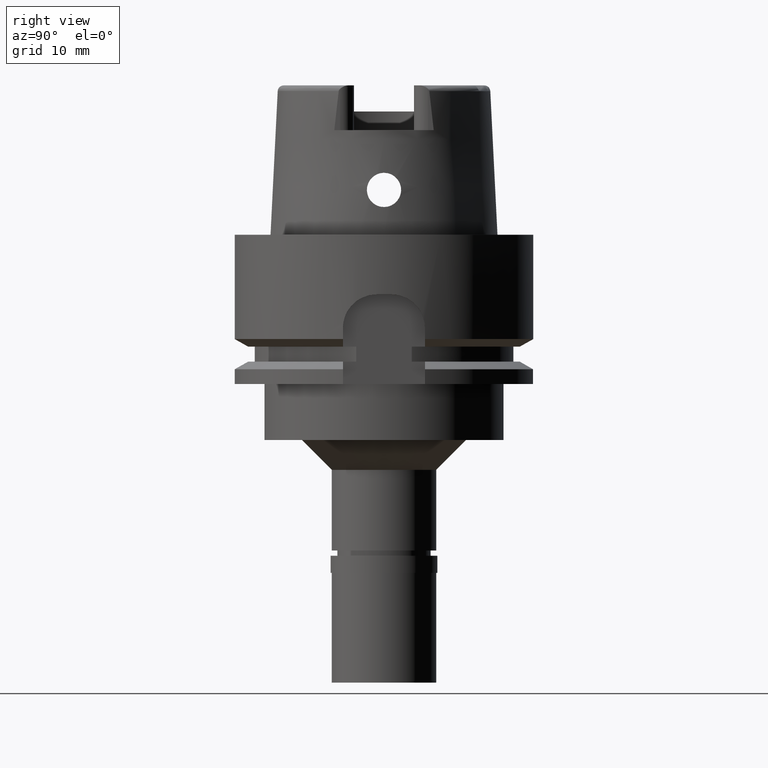
[diagram: clean part render]
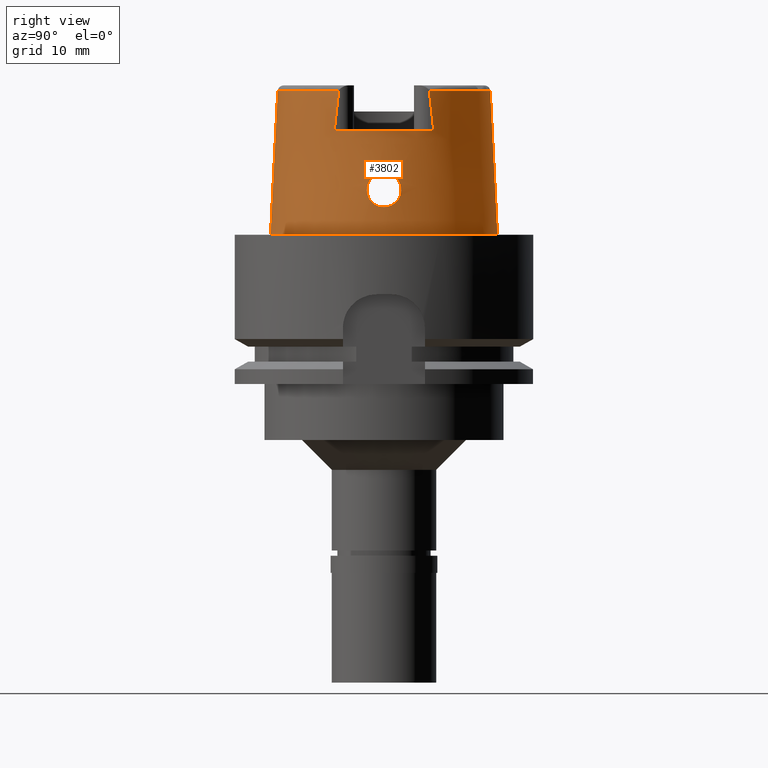
[diagram: same view with one face highlighted and labeled with its STEP entity id]
A machine part, right view. The second image highlights one B-rep face of the part: STEP entity #3802.
In plain terms, the highlighted conical surface has half-angle 2.862 deg.
Its self-contained STEP definition (entity closure, byte-faithful):
#5 = CARTESIAN_POINT ( 'NONE',  ( 14.74746210141042901, 1.308969163063071761, 7.891227968485833522 ) ) ;
#11 = CARTESIAN_POINT ( 'NONE',  ( 14.92935567533019103, -1.380120542205658163, 4.153850966123725286 ) ) ;
#31 = CARTESIAN_POINT ( 'NONE',  ( 14.74847181687139752, 1.290108341005458348, 7.904111744468585776 ) ) ;
#35 = CARTESIAN_POINT ( 'NONE',  ( 14.87704271463027617, -1.720752544004548357, 4.473070447404713157 ) ) ;
#58 = CARTESIAN_POINT ( 'NONE',  ( 14.74382373128674928, 2.273238747565043738, 5.642081376087535460 ) ) ;
#87 = CARTESIAN_POINT ( 'NONE',  ( 14.83348634340086392, 1.949407324743515746, 4.777192682925997858 ) ) ;
#163 = EDGE_LOOP ( 'NONE', ( #2917, #4524 ) ) ;
#232 = CARTESIAN_POINT ( 'NONE',  ( 14.77731969520874955, -0.5813452205441042020, 8.226696748688809180 ) ) ;
#248 = CARTESIAN_POINT ( 'NONE',  ( 14.98148037233843155, 0.8665527453531454150, 3.869473469447908265 ) ) ;
#252 = CARTESIAN_POINT ( 'NONE',  ( 14.75063943624845919, -1.249098193476073204, 7.931310886500990698 ) ) ;
#280 = CARTESIAN_POINT ( 'NONE',  ( 14.78499286951999458, -0.1391435394969850470, 8.299999999999998934 ) ) ;
#307 = CARTESIAN_POINT ( 'NONE',  ( 14.71551364912842530, -1.855953234141038077, 7.366728212502884787 ) ) ;
#375 = CARTESIAN_POINT ( 'NONE',  ( 12.88000000001000167, -6.659963896840999986, 14.00000000000000000 ) ) ;
#385 = CARTESIAN_POINT ( 'NONE',  ( 14.70884916733791314, 2.286208832778403366, 6.292960380918006358 ) ) ;
#392 = CARTESIAN_POINT ( 'NONE',  ( 14.87055122855935529, -1.757709749341536343, 4.516124516433755787 ) ) ;
#413 = CARTESIAN_POINT ( 'NONE',  ( 14.74279783466153759, 1.394444610910544391, 7.829369356401133295 ) ) ;
#420 = CARTESIAN_POINT ( 'NONE',  ( 14.88789433745228585, -1.656179258491061290, 4.404017656865332420 ) ) ;
#442 = CARTESIAN_POINT ( 'NONE',  ( 14.71335089346777991, 1.896739896092925148, 7.303073132993861627 ) ) ;
#446 = CARTESIAN_POINT ( 'NONE',  ( 15.01500049748000620, -0.2875016380362344637, 3.699999999999998401 ) ) ;
#466 = CARTESIAN_POINT ( 'NONE',  ( 14.79666035521596257, 2.107820976572813976, 5.079423170689487677 ) ) ;
#472 = CARTESIAN_POINT ( 'NONE',  ( 14.97982209528140984, -0.8874059857386379369, 3.878065389903710525 ) ) ;
#497 = CARTESIAN_POINT ( 'NONE',  ( 14.71589562828282816, 1.851379962035808235, 7.367145579385099730 ) ) ;
#515 = DIRECTION ( 'NONE',  ( 0.8882768779220027167, 0.4593083802296007434, 0.0000000000000000000 ) ) ;
#523 = CARTESIAN_POINT ( 'NONE',  ( 12.88000000000000078, 6.263607520265212614, 17.57637995667134234 ) ) ;
#567 = CARTESIAN_POINT ( 'NONE',  ( 0.0000000000000000000, 14.23797715755999782, 19.23995141520000018 ) ) ;
#605 = EDGE_CURVE ( 'NONE', #5190, #4963, #2624, .T. ) ;
#612 = CIRCLE ( 'NONE', #958, 15.20000663301000010 ) ;
#635 = CARTESIAN_POINT ( 'NONE',  ( 14.76682765940899600, 0.8979610686173700174, 8.117470553073822259 ) ) ;
#646 = CARTESIAN_POINT ( 'NONE',  ( 14.71946415447971823, -2.299931617983177912, 6.038619287508075750 ) ) ;
#671 = CARTESIAN_POINT ( 'NONE',  ( 14.70331607478621194, -2.122035784307452211, 6.887162184341285354 ) ) ;
#695 = CARTESIAN_POINT ( 'NONE',  ( 14.76759460662934487, -0.8783932425125173804, 8.125662381886558094 ) ) ;
#718 = CARTESIAN_POINT ( 'NONE',  ( 14.78353131250833385, -0.2842489648354560861, 8.287348380467392417 ) ) ;
#747 = CARTESIAN_POINT ( 'NONE',  ( 14.75363996601564942, -1.190469742509851381, 7.968045714304610172 ) ) ;
#797 = CARTESIAN_POINT ( 'NONE',  ( 14.80064849366628721, 2.092108367808843461, 5.044252363179491105 ) ) ;
#820 = CARTESIAN_POINT ( 'NONE',  ( 12.88000000000000078, -6.460694174507035648, 15.83011803578793320 ) ) ;
#822 = CARTESIAN_POINT ( 'NONE',  ( 14.73773384448932866, 1.484087310098157086, 7.758020320716957130 ) ) ;
#828 = CARTESIAN_POINT ( 'NONE',  ( 14.82848291697530740, -1.972819218081519166, 4.817461836419033361 ) ) ;
#846 = CARTESIAN_POINT ( 'NONE',  ( 14.89626188648040639, 1.604318472935386986, 4.351884099019180496 ) ) ;
#877 = CARTESIAN_POINT ( 'NONE',  ( 14.80666145108240173, 2.067947584731435029, 4.991950655166025541 ) ) ;
#881 = CARTESIAN_POINT ( 'NONE',  ( 14.72809888189786243, -2.300253304590983650, 5.867089944022708892 ) ) ;
#897 = ORIENTED_EDGE ( 'NONE', *, *, #3092, .T. ) ;
#902 = CARTESIAN_POINT ( 'NONE',  ( 0.0000000000000000000, -14.23797715755999782, 19.23995141520000018 ) ) ;
#903 = CARTESIAN_POINT ( 'NONE',  ( 14.79479697821969353, 2.115025011223758522, 5.096068661740194017 ) ) ;
#947 = CARTESIAN_POINT ( 'NONE',  ( 12.88000000001000167, 6.659963896840999986, 14.00000000000000000 ) ) ;
#958 = AXIS2_PLACEMENT_3D ( 'NONE', #1071, #2242, #3896 ) ;
#1013 = CARTESIAN_POINT ( 'NONE',  ( 14.75280675805564812, 1.208712125945002880, 7.958799577560222716 ) ) ;
#1029 = ORIENTED_EDGE ( 'NONE', *, *, #5227, .F. ) ;
#1039 = CARTESIAN_POINT ( 'NONE',  ( 14.75631187839886493, 1.137667573944719956, 8.000356808905554118 ) ) ;
#1042 = VECTOR ( 'NONE', #3123, 1000.000000000000227 ) ;
#1050 = CARTESIAN_POINT ( 'NONE',  ( 14.70725173791872820, -2.271298306155478564, 6.369850645024469848 ) ) ;
#1067 = CARTESIAN_POINT ( 'NONE',  ( 14.98574308883158501, 0.8103790584047582124, 3.847340703320679012 ) ) ;
#1070 = CARTESIAN_POINT ( 'NONE',  ( 14.76871306554044949, -0.8491380674405223372, 8.137555551890359951 ) ) ;
#1071 = CARTESIAN_POINT ( 'NONE',  ( 0.0000000000000000000, 0.0000000000000000000, 7.958078640512999903E-13 ) ) ;
#1096 = CARTESIAN_POINT ( 'NONE',  ( 14.72916566287387319, -1.626401404973857767, 7.626291570307441425 ) ) ;
#1126 = CARTESIAN_POINT ( 'NONE',  ( 14.72980086668919952, -1.616212006316881000, 7.636443999579308972 ) ) ;
#1147 = CARTESIAN_POINT ( 'NONE',  ( 14.73231270229910983, -1.575468545320364733, 7.676103092676109796 ) ) ;
#1158 = EDGE_CURVE ( 'NONE', #3344, #2226, #3547, .T. ) ;
#1169 = AXIS2_PLACEMENT_3D ( 'NONE', #1537, #4878, #1971 ) ;
#1186 = VECTOR ( 'NONE', #4535, 1000.000000000000227 ) ;
#1197 = CARTESIAN_POINT ( 'NONE',  ( 14.70427063110080290, 2.079083494800741505, 6.991180673162743275 ) ) ;
#1225 = CARTESIAN_POINT ( 'NONE',  ( 14.93067013557703859, 1.362086856567604087, 4.144863184134784717 ) ) ;
#1230 = CARTESIAN_POINT ( 'NONE',  ( 14.83552922572987498, -1.939729989851151304, 4.764054186815303460 ) ) ;
#1251 = CARTESIAN_POINT ( 'NONE',  ( 14.72329670887186381, 2.299987056494400051, 5.962758927933275999 ) ) ;
#1280 = CARTESIAN_POINT ( 'NONE',  ( 14.90604151170108338, 1.540045616203341350, 4.291572566468078165 ) ) ;
#1287 = CARTESIAN_POINT ( 'NONE',  ( 14.83194585459848547, -1.956767935974938144, 4.790935393891938787 ) ) ;
#1299 = EDGE_LOOP ( 'NONE', ( #1029, #2529, #5082, #1840, #1446, #897, #3388, #4826 ) ) ;
#1309 = CARTESIAN_POINT ( 'NONE',  ( 14.96044792710318028, 1.107249988679927188, 3.978468477640336953 ) ) ;
#1320 = FACE_BOUND ( 'NONE', #163, .T. ) ;
#1434 = CARTESIAN_POINT ( 'NONE',  ( 0.0000000000000000000, -14.23797715755999782, 19.23995141520000018 ) ) ;
#1446 = ORIENTED_EDGE ( 'NONE', *, *, #3963, .F. ) ;
#1485 = CIRCLE ( 'NONE', #2172, 14.23797715755999782 ) ;
#1533 = CARTESIAN_POINT ( 'NONE',  ( 14.75228683030229071, -1.217300503494462838, 7.951661517696787307 ) ) ;
#1537 = CARTESIAN_POINT ( 'NONE',  ( 0.0000000000000000000, 0.0000000000000000000, 19.23995141520000018 ) ) ;
#1561 = CARTESIAN_POINT ( 'NONE',  ( 14.70734863064786957, -2.012830444106611161, 7.114970398975867028 ) ) ;
#1585 = CARTESIAN_POINT ( 'NONE',  ( 14.70337098597962644, -2.119802765027153146, 6.892466584778242478 ) ) ;
#1609 = CARTESIAN_POINT ( 'NONE',  ( 14.99370625009374969, 0.6922392700127031340, 3.806314018960327950 ) ) ;
#1635 = CARTESIAN_POINT ( 'NONE',  ( 14.78499286951999991, -6.894269632583999541E-14, 8.300000000000000711 ) ) ;
#1636 = CARTESIAN_POINT ( 'NONE',  ( 14.70331966261005263, 2.224938590171117170, 6.587761534165142763 ) ) ;
#1668 = CARTESIAN_POINT ( 'NONE',  ( 14.81276665772033851, 2.042069422409892976, 4.941046116341430761 ) ) ;
#1696 = CARTESIAN_POINT ( 'NONE',  ( 14.97211897083910515, 0.9852389395615281931, 3.918201391700918634 ) ) ;
#1723 = CARTESIAN_POINT ( 'NONE',  ( 14.70277320897272411, 2.150881954489023418, 6.815081273150854990 ) ) ;
#1735 = FACE_OUTER_BOUND ( 'NONE', #1299, .T. ) ;
#1807 = CARTESIAN_POINT ( 'NONE',  ( 14.77912781297125022, 0.5826531953967416522, 8.248701062004819562 ) ) ;
#1835 = CARTESIAN_POINT ( 'NONE',  ( 14.74875976441316361, 1.284708981622866508, 7.907755363934273696 ) ) ;
#1840 = ORIENTED_EDGE ( 'NONE', *, *, #3992, .T. ) ;
#1896 = CARTESIAN_POINT ( 'NONE',  ( 14.72904493205311560, -1.628333805992139727, 7.624355536937367894 ) ) ;
#1920 = AXIS2_PLACEMENT_3D ( 'NONE', #5022, #2930, #515 ) ;
#1922 = CARTESIAN_POINT ( 'NONE',  ( 14.74943449546721475, -1.271999119634813047, 7.916253078508695751 ) ) ;
#1968 = CARTESIAN_POINT ( 'NONE',  ( 14.70908610060784483, -1.977318169476816712, 7.177217040396257630 ) ) ;
#1971 = DIRECTION ( 'NONE',  ( 0.9046233376276806570, -0.4262119390858908896, 0.0000000000000000000 ) ) ;
#1995 = CARTESIAN_POINT ( 'NONE',  ( 14.77914664147333212, -0.5065101416648987165, 8.244802329449033351 ) ) ;
#2014 = CARTESIAN_POINT ( 'NONE',  ( 15.01216126449516608, 0.2892637048439183900, 3.713380585134937739 ) ) ;
#2033 = DIRECTION ( 'NONE',  ( 0.0000000000000000000, 1.000000000000000000, 0.0000000000000000000 ) ) ;
#2038 = CARTESIAN_POINT ( 'NONE',  ( 14.72728581863571051, 1.657573753942916284, 7.594572161408233768 ) ) ;
#2043 = CARTESIAN_POINT ( 'NONE',  ( 14.89006758045286816, -1.643003321371885983, 4.390456753667494105 ) ) ;
#2065 = CARTESIAN_POINT ( 'NONE',  ( 14.74608645242576266, 1.334487078138839600, 7.873415189314308726 ) ) ;
#2070 = CARTESIAN_POINT ( 'NONE',  ( 14.95143012189441123, -1.189356442175149908, 4.029928682754973401 ) ) ;
#2077 = CONICAL_SURFACE ( 'NONE', #3306, 14.71899189528999941, 0.04996004983832824653 ) ;
#2095 = CARTESIAN_POINT ( 'NONE',  ( 12.88000213910999925, -6.068393227113000776, 19.24000449500000087 ) ) ;
#2096 = CARTESIAN_POINT ( 'NONE',  ( 14.74806601710747067, 1.297697718273488787, 7.898947524009769516 ) ) ;
#2101 = CARTESIAN_POINT ( 'NONE',  ( 14.75496135383650298, -2.246732025498147323, 5.502183779660846596 ) ) ;
#2126 = CARTESIAN_POINT ( 'NONE',  ( 14.70429409588052927, 2.243049519044772122, 6.514172158015600900 ) ) ;
#2152 = CARTESIAN_POINT ( 'NONE',  ( 14.73566110849090016, 1.519386367128205073, 7.727102769468504384 ) ) ;
#2153 = CARTESIAN_POINT ( 'NONE',  ( 0.0000000000000000000, 14.23797715755999782, 19.23995141520000018 ) ) ;
#2172 = AXIS2_PLACEMENT_3D ( 'NONE', #3267, #4943, #2033 ) ;
#2177 = CIRCLE ( 'NONE', #1920, 14.49998341749000730 ) ;
#2181 = CARTESIAN_POINT ( 'NONE',  ( 14.76533950891336211, 0.9349855305109072701, 8.101492518726461256 ) ) ;
#2226 = VERTEX_POINT ( 'NONE', #3573 ) ;
#2242 = DIRECTION ( 'NONE',  ( 0.0000000000000000000, 0.0000000000000000000, 1.000000000000000000 ) ) ;
#2278 = EDGE_CURVE ( 'NONE', #2900, #2522, #3090, .T. ) ;
#2282 = CARTESIAN_POINT ( 'NONE',  ( 14.76639153142401106, 0.9089452896332332887, 8.112801521801713989 ) ) ;
#2296 = CARTESIAN_POINT ( 'NONE',  ( 14.78499286951999991, -6.894269632583999541E-14, 8.300000000000000711 ) ) ;
#2321 = CARTESIAN_POINT ( 'NONE',  ( 14.70276248150356579, -2.228095642135227816, 6.589857432077486088 ) ) ;
#2371 = CARTESIAN_POINT ( 'NONE',  ( 14.75791475306249012, -1.102951739333393411, 8.018644828975478589 ) ) ;
#2396 = CARTESIAN_POINT ( 'NONE',  ( 14.76254174481243275, -1.002534319332995416, 8.071386704107059273 ) ) ;
#2417 = CARTESIAN_POINT ( 'NONE',  ( 15.01500049747999910, 0.0000000000000000000, 3.700000000000000178 ) ) ;
#2425 = CARTESIAN_POINT ( 'NONE',  ( 14.83794490281927381, -1.928146779078032891, 4.746060414139606110 ) ) ;
#2448 = CARTESIAN_POINT ( 'NONE',  ( 14.70316431955217595, 2.128797019408528168, 6.870793862270696550 ) ) ;
#2453 = CARTESIAN_POINT ( 'NONE',  ( 14.80517555521400119, -2.074776488253126328, 5.004519789426971066 ) ) ;
#2474 = CARTESIAN_POINT ( 'NONE',  ( 14.70693115959205954, 2.018002425557420487, 7.113621795713668483 ) ) ;
#2481 = CARTESIAN_POINT ( 'NONE',  ( 14.77198997121920776, -2.195975715764212133, 5.315003985165467348 ) ) ;
#2502 = CARTESIAN_POINT ( 'NONE',  ( 14.91762638340556713, 1.459195804773238070, 4.221671879001131167 ) ) ;
#2506 = CARTESIAN_POINT ( 'NONE',  ( 14.91207909618363736, -1.508023800573800699, 4.254835684627205517 ) ) ;
#2522 = VERTEX_POINT ( 'NONE', #1434 ) ;
#2529 = ORIENTED_EDGE ( 'NONE', *, *, #2278, .T. ) ;
#2534 = CARTESIAN_POINT ( 'NONE',  ( 14.72921064385394985, 2.295954934076536169, 5.859146087648958279 ) ) ;
#2539 = CARTESIAN_POINT ( 'NONE',  ( 14.79786799101661998, -2.103600146387718528, 5.067842618975212154 ) ) ;
#2564 = CARTESIAN_POINT ( 'NONE',  ( 12.88000000000000078, -6.263516040715036759, 17.57678620078793230 ) ) ;
#2565 = CARTESIAN_POINT ( 'NONE',  ( 14.72879095587060583, 1.632498117572952490, 7.620170303020057823 ) ) ;
#2590 = CARTESIAN_POINT ( 'NONE',  ( 12.88000000001000167, 6.659963896840999986, 14.00000000000000000 ) ) ;
#2615 = CARTESIAN_POINT ( 'NONE',  ( 12.88000000000000078, 6.460775660586213220, 15.82979269152467694 ) ) ;
#2617 = CARTESIAN_POINT ( 'NONE',  ( 14.76711513610892190, 0.8906777518067482413, 8.120544450447500395 ) ) ;
#2624 = B_SPLINE_CURVE_WITH_KNOTS ( 'NONE', 3,
 ( #2296, #280, #718, #1995, #232, #3617, #4824, #2759, #1070, #3970, #4441, #695, #5278, #2396, #2371, #3645, #747, #1533, #252, #3191, #1922, #4876, #3144, #4077, #3995, #1147, #5302, #1126, #2809, #1096, #1896, #4902, #3568, #4849, #3594, #4048, #2731, #307, #1968, #1561, #4412, #5228, #3217, #4491, #1585, #671, #3245, #2321, #1050, #5252, #3167, #2702, #4387, #646, #881, #2919, #2101, #4625, #2481, #4135, #4566, #4980, #2891, #5355, #2539, #2453, #5037, #3781, #828, #1287, #1230, #2425, #3371, #4108, #3309, #392, #35, #4163, #420, #2043, #2864, #2506, #11, #2070, #4542, #3755, #4593, #3810, #2945, #4221, #472, #5010, #446, #3726 ),
 .UNSPECIFIED., .F., .F.,
 ( 4, 2, 2, 1, 1, 1, 2, 2, 2, 2, 1, 1, 1, 2, 2, 2, 2, 2, 1, 1, 1, 2, 2, 2, 2, 1, 1, 2, 2, 2, 2, 2, 2, 2, 2, 1, 1, 2, 2, 2, 2, 1, 2, 2, 2, 1, 1, 2, 2, 2, 2, 1, 1, 2, 2, 4 ),
 ( 0.0000000000000000000, 0.06250000000033405223, 0.09375000000050114080, 0.1093750000005846851, 0.1171875000006263462, 0.1210937500006472045, 0.1230468750006574880, 0.1250000000006677714, 0.1562500000008348600, 0.1718750000009184042, 0.1796875000009603984, 0.1835937500009815482, 0.1855468750009921231, 0.1865234375009972578, 0.1875000000010024204, 0.2187500000011697587, 0.2343750000012535806, 0.2421875000012957135, 0.2460937500013163359, 0.2480468750013258006, 0.2490234375013321289, 0.2495117187513311574, 0.2500000000013301582, 0.3125000000012213008, 0.3437500000011666779, 0.3593750000011395329, 0.3671875000011259327, 0.3710937500011192713, 0.3750000000011126100, 0.4375000000010030865, 0.4687500000009482970, 0.4843750000009210965, 0.5000000000008938406, 0.5625000000007844836, 0.5937500000007297496, 0.6093750000007025491, 0.6171875000006890044, 0.6210937500006822320, 0.6250000000006754597, 0.6562500000006211698, 0.6718750000005938583, 0.6796875000005804246, 0.6835937500005734302, 0.6875000000005664358, 0.7187500000005118128, 0.7343750000004845013, 0.7421875000004706235, 0.7460937500004635181, 0.7500000000004564127, 0.8125000000003415046, 0.8437500000002841061, 0.8593750000002552403, 0.8671875000002409184, 0.8710937500002338130, 0.8750000000002267075, 1.000000000000000000 ),
 .UNSPECIFIED. ) ;
#2642 = CARTESIAN_POINT ( 'NONE',  ( 14.76237883554666652, 1.004884296207209093, 8.069153954156231379 ) ) ;
#2670 = CARTESIAN_POINT ( 'NONE',  ( 14.78499286952000347, 0.2787144126839491420, 8.300000000000006040 ) ) ;
#2702 = CARTESIAN_POINT ( 'NONE',  ( 14.71456604909234755, -2.295400891312618707, 6.149895734828437099 ) ) ;
#2725 = CARTESIAN_POINT ( 'NONE',  ( 14.98371348087760957, 0.8374793885099052204, 3.857869651533080813 ) ) ;
#2731 = CARTESIAN_POINT ( 'NONE',  ( 14.72141886632963192, -1.755149534577328030, 7.496977180730811874 ) ) ;
#2759 = CARTESIAN_POINT ( 'NONE',  ( 14.76993198125134121, -0.8162504944387803940, 8.150452494305604034 ) ) ;
#2809 = CARTESIAN_POINT ( 'NONE',  ( 14.72948471376410140, -1.621286640771846921, 7.631395977520684326 ) ) ;
#2820 = VERTEX_POINT ( 'NONE', #2153 ) ;
#2859 = CARTESIAN_POINT ( 'NONE',  ( 14.71406157717080276, 2.300051064112428101, 6.144923505072709347 ) ) ;
#2864 = CARTESIAN_POINT ( 'NONE',  ( 14.89100243181352212, -1.637307387457173746, 4.384654628733139603 ) ) ;
#2886 = CARTESIAN_POINT ( 'NONE',  ( 14.74145529393720899, 1.418445412900705138, 7.810745774158530885 ) ) ;
#2891 = CARTESIAN_POINT ( 'NONE',  ( 14.78936361117865061, -2.135420556004623105, 5.145551896193573782 ) ) ;
#2900 = VERTEX_POINT ( 'NONE', #4331 ) ;
#2904 = CARTESIAN_POINT ( 'NONE',  ( 15.01500049747999910, 0.0000000000000000000, 3.700000000000000178 ) ) ;
#2913 = CARTESIAN_POINT ( 'NONE',  ( 14.73849552591950207, 2.283474533340135615, 5.715437744783342211 ) ) ;
#2917 = ORIENTED_EDGE ( 'NONE', *, *, #4397, .F. ) ;
#2919 = CARTESIAN_POINT ( 'NONE',  ( 14.73740491810796271, -2.288222675031863940, 5.723341141480884353 ) ) ;
#2924 = DIRECTION ( 'NONE',  ( 0.0000000000000000000, -1.000000000000000000, 0.0000000000000000000 ) ) ;
#2930 = DIRECTION ( 'NONE',  ( 0.0000000000000000000, 0.0000000000000000000, -1.000000000000000000 ) ) ;
#2938 = CARTESIAN_POINT ( 'NONE',  ( 14.77595087279871677, 2.186217275630342627, 5.266853072904414290 ) ) ;
#2945 = CARTESIAN_POINT ( 'NONE',  ( 14.97809108265124678, -0.9086971803852169627, 3.887102067510289416 ) ) ;
#2955 = CARTESIAN_POINT ( 'NONE',  ( 0.0000000000000000000, 0.0000000000000000000, 9.619975707601000181 ) ) ;
#2968 = CARTESIAN_POINT ( 'NONE',  ( 14.70307356091887918, 2.133197496646048741, 6.859977719796455986 ) ) ;
#3090 = CIRCLE ( 'NONE', #1169, 14.23797715756000315 ) ;
#3092 = EDGE_CURVE ( 'NONE', #2820, #2226, #1485, .T. ) ;
#3123 = DIRECTION ( 'NONE',  ( 0.0000000000000000000, 0.04993926899656212642, -0.9987522562738413434 ) ) ;
#3144 = CARTESIAN_POINT ( 'NONE',  ( 14.74915384753474790, -1.277298268195950159, 7.912728732249237673 ) ) ;
#3167 = CARTESIAN_POINT ( 'NONE',  ( 14.71314520760448019, -2.292723817169000533, 6.186472839292789239 ) ) ;
#3191 = CARTESIAN_POINT ( 'NONE',  ( 14.74979855529114836, -1.265112221103227075, 7.920818573447227173 ) ) ;
#3217 = CARTESIAN_POINT ( 'NONE',  ( 14.70377971806635564, -2.104436167519136536, 6.928321603646777405 ) ) ;
#3245 = CARTESIAN_POINT ( 'NONE',  ( 14.70192206656657241, -2.184506991195366066, 6.735960375490754437 ) ) ;
#3267 = CARTESIAN_POINT ( 'NONE',  ( 0.0000000000000000000, 0.0000000000000000000, 19.23995141520000018 ) ) ;
#3271 = CARTESIAN_POINT ( 'NONE',  ( 14.91309969645801381, 1.491601944800021284, 4.248719662419749632 ) ) ;
#3304 = CARTESIAN_POINT ( 'NONE',  ( 14.72809154072376359, 1.644141965330470967, 7.608368881129820238 ) ) ;
#3306 = AXIS2_PLACEMENT_3D ( 'NONE', #2955, #5017, #2924 ) ;
#3309 = CARTESIAN_POINT ( 'NONE',  ( 14.85759085076220742, -1.829456455893523126, 4.604002460379502004 ) ) ;
#3333 = CARTESIAN_POINT ( 'NONE',  ( 14.72510157508131279, 2.299198539327701241, 5.929750724641838389 ) ) ;
#3344 = VERTEX_POINT ( 'NONE', #947 ) ;
#3366 = CARTESIAN_POINT ( 'NONE',  ( 14.73141757031458532, 2.293500492585382577, 5.823468428072075653 ) ) ;
#3371 = CARTESIAN_POINT ( 'NONE',  ( 14.83932822437653876, -1.921452617469411095, 4.735836555395727565 ) ) ;
#3388 = ORIENTED_EDGE ( 'NONE', *, *, #1158, .F. ) ;
#3392 = CARTESIAN_POINT ( 'NONE',  ( 12.87997705758999878, 6.068458167862999630, 19.23995141520000018 ) ) ;
#3394 = CARTESIAN_POINT ( 'NONE',  ( 14.72570758263927360, 1.683945679057694100, 7.566893828202907457 ) ) ;
#3425 = CARTESIAN_POINT ( 'NONE',  ( 0.0000000000000000000, -15.20000663301000010, 4.547473508865000658E-13 ) ) ;
#3477 = EDGE_CURVE ( 'NONE', #3344, #4856, #2177, .T. ) ;
#3483 = CARTESIAN_POINT ( 'NONE',  ( 14.76721441685659997, 0.8881538948534405398, 8.121605187691290695 ) ) ;
#3547 = B_SPLINE_CURVE_WITH_KNOTS ( 'NONE', 3,
 ( #2590, #2615, #523, #3392 ),
 .UNSPECIFIED., .F., .F.,
 ( 4, 4 ),
 ( 0.0000000000000000000, 1.000000000000000000 ),
 .UNSPECIFIED. ) ;
#3568 = CARTESIAN_POINT ( 'NONE',  ( 14.72895246165387029, -1.629815378456500818, 7.622868399800179162 ) ) ;
#3573 = CARTESIAN_POINT ( 'NONE',  ( 12.87997705758999878, 6.068458167862999630, 19.23995141520000018 ) ) ;
#3589 = CARTESIAN_POINT ( 'NONE',  ( 15.00009452430963286, 0.5826153368861933801, 3.773708704896007848 ) ) ;
#3594 = CARTESIAN_POINT ( 'NONE',  ( 14.72894539698694949, -1.629929366048767037, 7.622753913078474497 ) ) ;
#3617 = CARTESIAN_POINT ( 'NONE',  ( 14.77403119193250269, -0.6939996709510745099, 8.193148336464611603 ) ) ;
#3645 = CARTESIAN_POINT ( 'NONE',  ( 14.75626768233204622, -1.137446855200246132, 7.999475735609693494 ) ) ;
#3720 = CARTESIAN_POINT ( 'NONE',  ( 14.70267389852733331, 2.192074273968481979, 6.697326476748695967 ) ) ;
#3726 = CARTESIAN_POINT ( 'NONE',  ( 15.01500049747999910, 0.0000000000000000000, 3.700000000000000178 ) ) ;
#3749 = CARTESIAN_POINT ( 'NONE',  ( 14.72897150120023646, 1.629494641115239340, 7.623191126883619440 ) ) ;
#3755 = CARTESIAN_POINT ( 'NONE',  ( 14.96726521259419052, -1.031969238910275921, 3.944206554067874571 ) ) ;
#3777 = CARTESIAN_POINT ( 'NONE',  ( 14.72849855279023146, 1.637364332527059041, 7.615255836552810464 ) ) ;
#3781 = CARTESIAN_POINT ( 'NONE',  ( 14.82171761973987145, -2.003670476054193461, 4.869976404840307360 ) ) ;
#3802 = ADVANCED_FACE ( 'NONE', ( #1735, #1320 ), #2077, .T. ) ;
#3806 = CARTESIAN_POINT ( 'NONE',  ( 14.70255498794170990, 2.174218581857357169, 6.751903596196171087 ) ) ;
#3810 = CARTESIAN_POINT ( 'NONE',  ( 14.97620187247534318, -0.9315578133195372423, 3.896981744083552357 ) ) ;
#3814 = B_SPLINE_CURVE_WITH_KNOTS ( 'NONE', 3,
 ( #2095, #2564, #820, #4974 ),
 .UNSPECIFIED., .F., .F.,
 ( 4, 4 ),
 ( 0.0000000000000000000, 1.000000000000000000 ),
 .UNSPECIFIED. ) ;
#3828 = CARTESIAN_POINT ( 'NONE',  ( 14.88524694627434819, 1.673835716146513608, 4.420770591003673644 ) ) ;
#3896 = DIRECTION ( 'NONE',  ( 0.0000000000000000000, -1.000000000000000000, 0.0000000000000000000 ) ) ;
#3963 = EDGE_CURVE ( 'NONE', #2820, #4673, #4314, .T. ) ;
#3970 = CARTESIAN_POINT ( 'NONE',  ( 14.76817782737698792, -0.8632248248090288456, 8.131869742764919806 ) ) ;
#3992 = EDGE_CURVE ( 'NONE', #5329, #4673, #612, .T. ) ;
#3995 = CARTESIAN_POINT ( 'NONE',  ( 14.73731318979792704, -1.491758076768046504, 7.752241050394184541 ) ) ;
#4048 = CARTESIAN_POINT ( 'NONE',  ( 14.72900306058855335, -1.628969731551397127, 7.623717812836060759 ) ) ;
#4077 = CARTESIAN_POINT ( 'NONE',  ( 14.74230208543621679, -1.406045321536656845, 7.826372174703243090 ) ) ;
#4102 = CARTESIAN_POINT ( 'NONE',  ( 15.01500049748000798, 0.1430271544701445241, 3.700000000000001510 ) ) ;
#4108 = CARTESIAN_POINT ( 'NONE',  ( 14.84898072469035490, -1.874395481074353276, 4.664948826759618861 ) ) ;
#4128 = CARTESIAN_POINT ( 'NONE',  ( 14.70294322156763123, 2.140342991913898096, 6.842036290909333296 ) ) ;
#4135 = CARTESIAN_POINT ( 'NONE',  ( 14.77750326184302487, -2.177860363616130446, 5.258569746637467013 ) ) ;
#4157 = CARTESIAN_POINT ( 'NONE',  ( 14.93865089212975938, 1.297507711271690400, 4.099441714252923141 ) ) ;
#4163 = CARTESIAN_POINT ( 'NONE',  ( 14.88463588509793034, -1.675817749703631732, 4.424480866023750458 ) ) ;
#4187 = CARTESIAN_POINT ( 'NONE',  ( 14.87669089300162639, 1.724762144764118821, 4.476554210067167361 ) ) ;
#4216 = CARTESIAN_POINT ( 'NONE',  ( 14.89480338870509790, 1.613599235947547728, 4.360980037974035994 ) ) ;
#4221 = CARTESIAN_POINT ( 'NONE',  ( 14.97933055390311807, -0.8934965727306157790, 3.880629311970654083 ) ) ;
#4245 = CARTESIAN_POINT ( 'NONE',  ( 14.73066759139611115, 1.602998560734127054, 7.651081842298438573 ) ) ;
#4314 = LINE ( 'NONE', #567, #1042 ) ;
#4331 = CARTESIAN_POINT ( 'NONE',  ( 12.88000213910999925, -6.068393227113000776, 19.24000449500000087 ) ) ;
#4353 = CARTESIAN_POINT ( 'NONE',  ( 14.78499286951999991, -6.894269632583999541E-14, 8.300000000000000711 ) ) ;
#4387 = CARTESIAN_POINT ( 'NONE',  ( 14.71767678490223830, -2.299002971029701303, 6.076937132485756621 ) ) ;
#4397 = EDGE_CURVE ( 'NONE', #4963, #5190, #4767, .T. ) ;
#4408 = CARTESIAN_POINT ( 'NONE',  ( 14.98233822740057519, 0.8555239949481580064, 3.865012213133321328 ) ) ;
#4412 = CARTESIAN_POINT ( 'NONE',  ( 14.70534999502819673, -2.059698684871472896, 7.024110674862550141 ) ) ;
#4441 = CARTESIAN_POINT ( 'NONE',  ( 14.76781814733114651, -0.8726139473707084093, 8.128043842860678936 ) ) ;
#4491 = CARTESIAN_POINT ( 'NONE',  ( 14.70352688419781373, -2.113724750221575910, 6.906767912899014483 ) ) ;
#4524 = ORIENTED_EDGE ( 'NONE', *, *, #605, .F. ) ;
#4535 = DIRECTION ( 'NONE',  ( 0.0000000000000000000, -0.04993926899656212642, -0.9987522562738413434 ) ) ;
#4536 = CARTESIAN_POINT ( 'NONE',  ( 14.89874869190051143, 1.588298745073579710, 4.336440298015957318 ) ) ;
#4542 = CARTESIAN_POINT ( 'NONE',  ( 14.95814820038988380, -1.125915301134576829, 3.993185722532051507 ) ) ;
#4558 = LINE ( 'NONE', #902, #1186 ) ;
#4559 = CARTESIAN_POINT ( 'NONE',  ( 14.72867387603781353, 1.634446373422290932, 7.618204859427280873 ) ) ;
#4566 = CARTESIAN_POINT ( 'NONE',  ( 14.78432889782957105, -2.153806137335530835, 5.192639673105091447 ) ) ;
#4589 = CARTESIAN_POINT ( 'NONE',  ( 14.76163705228040257, 2.230601945540190201, 5.419228496179215426 ) ) ;
#4593 = CARTESIAN_POINT ( 'NONE',  ( 14.97158369231161501, -0.9852969705863542371, 3.921249467703968428 ) ) ;
#4617 = CARTESIAN_POINT ( 'NONE',  ( 14.82510006995869034, 1.988179157211199533, 4.841178592940593717 ) ) ;
#4625 = CARTESIAN_POINT ( 'NONE',  ( 14.76141306264824671, -2.228997816797106957, 5.427562867229007715 ) ) ;
#4649 = CARTESIAN_POINT ( 'NONE',  ( 14.72268394336494168, 1.734741596224591786, 7.511247475915264538 ) ) ;
#4673 = VERTEX_POINT ( 'NONE', #4913 ) ;
#4767 = B_SPLINE_CURVE_WITH_KNOTS ( 'NONE', 3,
 ( #2417, #4102, #2014, #5349, #3589, #1609, #4820, #1067, #2725, #4408, #248, #1696, #1309, #4157, #1225, #2502, #3271, #1280, #5030, #4536, #846, #4216, #3828, #4187, #4975, #4948, #87, #4617, #1668, #877, #797, #466, #903, #2938, #4589, #58, #2913, #3366, #2534, #3333, #1251, #2859, #385, #2126, #1636, #3720, #3806, #1723, #4128, #2968, #2448, #1197, #2474, #442, #497, #5377, #4649, #3394, #2038, #3304, #3777, #4559, #2565, #5060, #3749, #4245, #2152, #822, #2886, #413, #5002, #2065, #5, #2096, #31, #1835, #1013, #1039, #5193, #2642, #5117, #2181, #2282, #635, #2617, #3483, #1807, #2670, #4353 ),
 .UNSPECIFIED., .F., .F.,
 ( 4, 2, 2, 1, 1, 2, 2, 2, 2, 2, 1, 2, 2, 2, 2, 2, 1, 2, 2, 2, 2, 2, 2, 2, 2, 1, 1, 2, 2, 2, 2, 1, 1, 1, 1, 1, 2, 2, 2, 2, 2, 1, 1, 2, 2, 2, 2, 1, 1, 2, 2, 4 ),
 ( 0.0000000000000000000, 0.06250000000011754486, 0.09375000000017630342, 0.1093750000002057382, 0.1171875000002204348, 0.1210937500002278178, 0.1250000000002352007, 0.1875000000003528011, 0.2187500000004116152, 0.2343750000004410361, 0.2421875000004556910, 0.2460937500004630463, 0.2500000000004704015, 0.2812500000005283551, 0.3125000000005862533, 0.3437500000006442069, 0.3593750000006730727, 0.3671875000006872281, 0.3750000000007014389, 0.4375000000008161805, 0.4687500000008738010, 0.4843750000009024448, 0.5000000000009310330, 0.5625000000010466072, 0.5937500000011043388, 0.6093750000011333157, 0.6171875000011477486, 0.6210937500011549650, 0.6250000000011621815, 0.6875000000012745360, 0.7187500000013309354, 0.7343750000013590240, 0.7421875000013732349, 0.7460937500013803403, 0.7480468750013840040, 0.7490234375013857804, 0.7495117187513866686, 0.7500000000013874457, 0.7812500000012220225, 0.7968750000011394219, 0.8046875000010981216, 0.8085937500010773604, 0.8105468750010669243, 0.8115234375010615953, 0.8125000000010563772, 0.8437500000008796297, 0.8593750000007914780, 0.8671875000007475132, 0.8710937500007255307, 0.8730468750007145395, 0.8750000000007035483, 1.000000000000000000 ),
 .UNSPECIFIED. ) ;
#4820 = CARTESIAN_POINT ( 'NONE',  ( 14.99024593489349222, 0.7469297199493190043, 3.824064163264897509 ) ) ;
#4824 = CARTESIAN_POINT ( 'NONE',  ( 14.77224991932452625, -0.7504254613659956386, 8.174777573319413904 ) ) ;
#4826 = ORIENTED_EDGE ( 'NONE', *, *, #3477, .T. ) ;
#4849 = CARTESIAN_POINT ( 'NONE',  ( 14.72894773792091705, -1.629891511642211244, 7.622791933981772239 ) ) ;
#4856 = VERTEX_POINT ( 'NONE', #375 ) ;
#4876 = CARTESIAN_POINT ( 'NONE',  ( 14.74919097063553153, -1.276595555703011531, 7.913194033130229954 ) ) ;
#4878 = DIRECTION ( 'NONE',  ( 0.0000000000000000000, 0.0000000000000000000, -1.000000000000000000 ) ) ;
#4902 = CARTESIAN_POINT ( 'NONE',  ( 14.72897197002152225, -1.629502254262594763, 7.623182842291778449 ) ) ;
#4913 = CARTESIAN_POINT ( 'NONE',  ( 0.0000000000000000000, 15.20000663301000010, 7.958078640512999903E-13 ) ) ;
#4943 = DIRECTION ( 'NONE',  ( 0.0000000000000000000, 0.0000000000000000000, -1.000000000000000000 ) ) ;
#4948 = CARTESIAN_POINT ( 'NONE',  ( 14.85058688751843192, 1.867004037285656892, 4.654733269120042038 ) ) ;
#4963 = VERTEX_POINT ( 'NONE', #2904 ) ;
#4974 = CARTESIAN_POINT ( 'NONE',  ( 12.88000000001000167, -6.659963896840999986, 14.00000000000000000 ) ) ;
#4975 = CARTESIAN_POINT ( 'NONE',  ( 14.85945591089872053, 1.820888371126445859, 4.592854992983354201 ) ) ;
#4980 = CARTESIAN_POINT ( 'NONE',  ( 14.78733848402210072, -2.142860414517899770, 5.164385401636813810 ) ) ;
#5002 = CARTESIAN_POINT ( 'NONE',  ( 14.74496473211060099, 1.355040248678909931, 7.858529775984080423 ) ) ;
#5010 = CARTESIAN_POINT ( 'NONE',  ( 15.00351367227229993, -0.5887776472069559119, 3.754668201671351291 ) ) ;
#5017 = DIRECTION ( 'NONE',  ( 0.0000000000000000000, 0.0000000000000000000, -1.000000000000000000 ) ) ;
#5022 = CARTESIAN_POINT ( 'NONE',  ( 0.0000000000000000000, 0.0000000000000000000, 14.00000000000000000 ) ) ;
#5030 = CARTESIAN_POINT ( 'NONE',  ( 14.90244538073871716, 1.564225718321860414, 4.313569135618424255 ) ) ;
#5037 = CARTESIAN_POINT ( 'NONE',  ( 14.81742152559747971, -2.022569680376063772, 4.904266697829215538 ) ) ;
#5060 = CARTESIAN_POINT ( 'NONE',  ( 14.72890734518944988, 1.630561854090024854, 7.622118380553172479 ) ) ;
#5082 = ORIENTED_EDGE ( 'NONE', *, *, #5202, .T. ) ;
#5117 = CARTESIAN_POINT ( 'NONE',  ( 14.76437882011165570, 0.9579940866063124671, 8.091063118061814663 ) ) ;
#5190 = VERTEX_POINT ( 'NONE', #1635 ) ;
#5193 = CARTESIAN_POINT ( 'NONE',  ( 14.76094070322126406, 1.037310355699717856, 8.053147813454536674 ) ) ;
#5202 = EDGE_CURVE ( 'NONE', #2522, #5329, #4558, .T. ) ;
#5227 = EDGE_CURVE ( 'NONE', #2900, #4856, #3814, .T. ) ;
#5228 = CARTESIAN_POINT ( 'NONE',  ( 14.70450256954843660, -2.081533672432459792, 6.979303939553913594 ) ) ;
#5252 = CARTESIAN_POINT ( 'NONE',  ( 14.70928626239205705, -2.282013294474691367, 6.296367694380430535 ) ) ;
#5278 = CARTESIAN_POINT ( 'NONE',  ( 14.76520744539049979, -0.9397055858389681271, 8.100204151581685608 ) ) ;
#5302 = CARTESIAN_POINT ( 'NONE',  ( 14.73105968245928565, -1.595856134862069231, 7.656382820881367124 ) ) ;
#5329 = VERTEX_POINT ( 'NONE', #3425 ) ;
#5349 = CARTESIAN_POINT ( 'NONE',  ( 15.00364356554066525, 0.5092110145719944692, 3.755834319288562817 ) ) ;
#5355 = CARTESIAN_POINT ( 'NONE',  ( 14.79061044936011271, -2.130786773666504708, 5.134083709934725626 ) ) ;
#5377 = CARTESIAN_POINT ( 'NONE',  ( 14.72031996579011803, 1.775008434129538015, 7.463222046899920414 ) ) ;